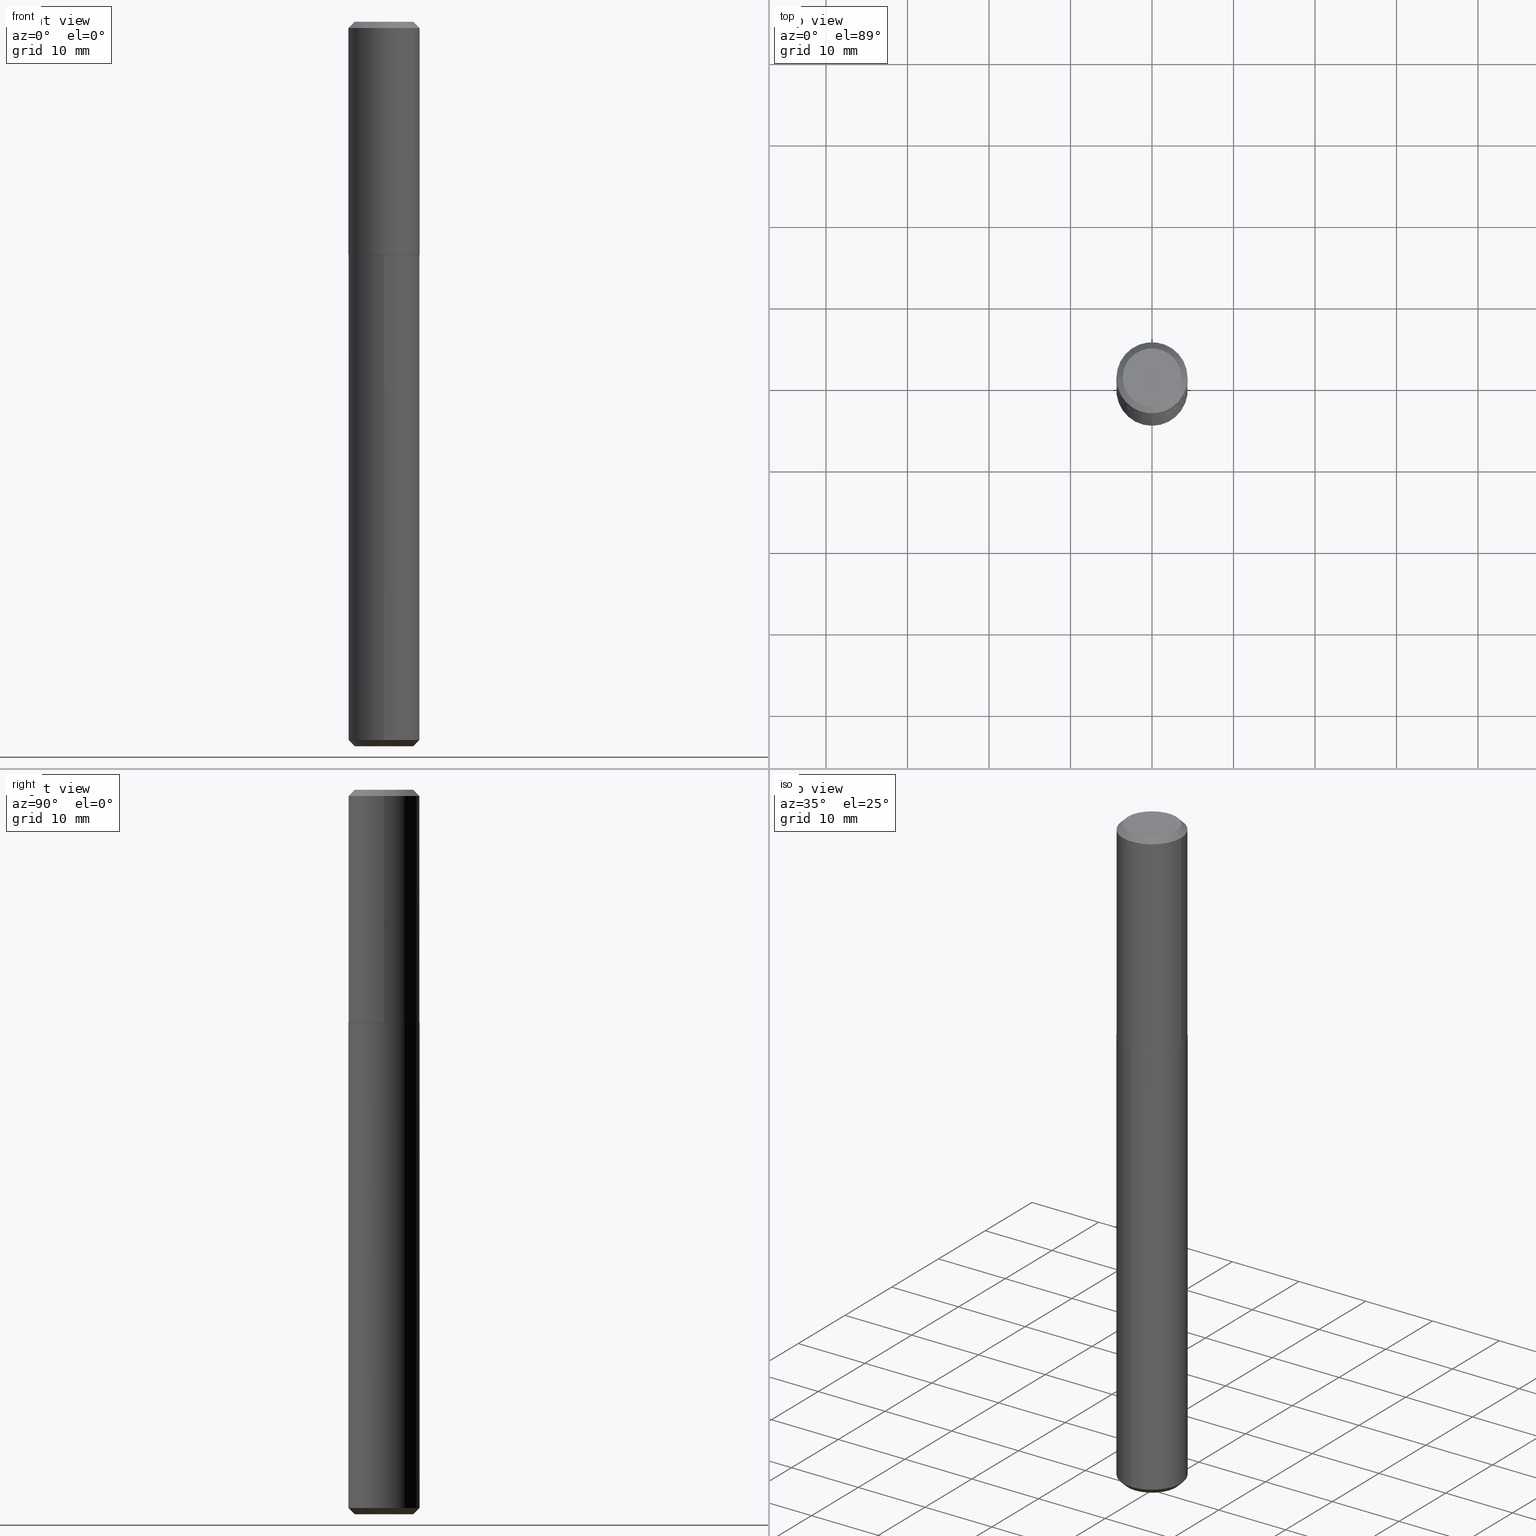
[diagram: canonical four-view strip — front | top / right | iso, engineering-drawing reading convention]
A machine part, canonical four-view strip (front | top / right | iso — engineering-drawing reading convention). The complete STEP part file that produces these views, byte-faithful:
ISO-10303-21;
HEADER;
FILE_DESCRIPTION (( 'STEP AP203' ),
    '1' );
FILE_NAME ('70022.STEP',
    '2024-04-19T13:35:50',
    ( '' ),
    ( '' ),
    'SwSTEP 2.0',
    'SolidWorks 2023',
    '' );
FILE_SCHEMA (( 'CONFIG_CONTROL_DESIGN' ));
ENDSEC;

DATA;
#1 = CARTESIAN_POINT ( 'NONE',  ( 0.1719000000000001083, -5.126542049823386173E-15, -1.124499999999999833 ) ) ;
#2 = VERTEX_POINT ( 'NONE', #239 ) ;
#3 = PRODUCT_DEFINITION_SHAPE ( 'NONE', 'NONE',  #409 ) ;
#4 = CARTESIAN_POINT ( 'NONE',  ( -1.200371284294241631E-15, -0.1719000000000039108, -1.124999999999999334 ) ) ;
#5 = ORIENTED_EDGE ( 'NONE', *, *, #25, .T. ) ;
#6 = LINE ( 'NONE', #259, #331 ) ;
#7 = ORIENTED_EDGE ( 'NONE', *, *, #187, .T. ) ;
#8 = CARTESIAN_POINT ( 'NONE',  ( 2.749929672555185870E-29, -3.926170765529116932E-15, -1.124499999999999833 ) ) ;
#9 = CARTESIAN_POINT ( 'NONE',  ( 7.336406418555460097E-31, -1.047444401652950829E-16, -0.03000000000000020359 ) ) ;
#10 = DIRECTION ( 'NONE',  ( -2.445601401447863841E-29, 3.491291454880066432E-15, 1.000000000000000000 ) ) ;
#11 = ORIENTED_EDGE ( 'NONE', *, *, #184, .F. ) ;
#12 = DIRECTION ( 'NONE',  ( -2.445468806185136597E-29, 3.491481338843145583E-15, 1.000000000000000000 ) ) ;
#13 = EDGE_LOOP ( 'NONE', ( #210, #201 ) ) ;
#14 = EDGE_CURVE ( 'NONE', #111, #266, #323, .T. ) ;
#15 = DIRECTION ( 'NONE',  ( -2.445601401447863841E-29, 3.491291454880066432E-15, 1.000000000000000000 ) ) ;
#16 = CIRCLE ( 'NONE', #93, 0.1719000000000001083 ) ;
#17 = APPROVAL_STATUS ( 'not_yet_approved' ) ;
#18 = DIRECTION ( 'NONE',  ( -6.982962677686266711E-15, -1.000000000000000000, 3.178415350394722068E-15 ) ) ;
#19 = AXIS2_PLACEMENT_3D ( 'NONE', #83, #15, #273 ) ;
#20 = PERSON_AND_ORGANIZATION_ROLE ( 'creator' ) ;
#21 = ORGANIZATION ( 'UNSPECIFIED', 'UNSPECIFIED', '' ) ;
#22 = APPROVAL_DATE_TIME ( #314, #325 ) ;
#23 = DIRECTION ( 'NONE',  ( 1.000000000000000000, -6.982962677686265922E-15, 4.876176775795935793E-29 ) ) ;
#24 = APPROVAL_STATUS ( 'not_yet_approved' ) ;
#25 = EDGE_CURVE ( 'NONE', #101, #168, #303, .T. ) ;
#26 = LINE ( 'NONE', #398, #181 ) ;
#27 = CALENDAR_DATE ( 2024, 19, 4 ) ;
#28 = DIRECTION ( 'NONE',  ( -2.445468806185136597E-29, 3.491481338843145583E-15, 1.000000000000000000 ) ) ;
#29 = EDGE_CURVE ( 'NONE', #266, #111, #126, .T. ) ;
#30 = CARTESIAN_POINT ( 'NONE',  ( 2.751152406958278111E-29, -3.927916506198538435E-15, -1.124999999999999778 ) ) ;
#31 = ORIENTED_EDGE ( 'NONE', *, *, #363, .T. ) ;
#32 = AXIS2_PLACEMENT_3D ( 'NONE', #161, #60, #351 ) ;
#33 = CARTESIAN_POINT ( 'NONE',  ( -0.1718999999999999695, -7.940346400755929507E-16, -0.03000000000000020359 ) ) ;
#34 = ORIENTED_EDGE ( 'NONE', *, *, #308, .F. ) ;
#35 = APPLICATION_PROTOCOL_DEFINITION ( 'international standard', 'config_control_design', 1994, #316 ) ;
#36 = DIRECTION ( 'NONE',  ( 0.7071067811865451302, -7.319954787623248157E-15, -0.7071067811865499042 ) ) ;
#37 = ORIENTED_EDGE ( 'NONE', *, *, #305, .T. ) ;
#38 = EDGE_CURVE ( 'NONE', #263, #145, #407, .T. ) ;
#39 = CARTESIAN_POINT ( 'NONE',  ( -0.1418999999999999706, 1.043254624046327412E-15, 9.613477373235591819E-19 ) ) ;
#40 = CONICAL_SURFACE ( 'NONE', #366, 0.1718999999999999695, 0.7853981633974449483 ) ;
#41 = ORIENTED_EDGE ( 'NONE', *, *, #29, .T. ) ;
#42 = DIRECTION ( 'NONE',  ( 1.000000000000000000, -6.982962677686265922E-15, 4.876176775795935793E-29 ) ) ;
#43 = DIRECTION ( 'NONE',  ( -2.445468806185136597E-29, 3.491481338843145583E-15, 1.000000000000000000 ) ) ;
#44 = ORIENTED_EDGE ( 'NONE', *, *, #269, .T. ) ;
#45 = CARTESIAN_POINT ( 'NONE',  ( -0.1714000000000001078, -2.707397029931614750E-15, -1.124999999999999778 ) ) ;
#46 = EDGE_LOOP ( 'NONE', ( #104, #41, #37, #393 ) ) ;
#47 = DIRECTION ( 'NONE',  ( -2.445601401447863841E-29, 3.491291454880066432E-15, 1.000000000000000000 ) ) ;
#48 = AXIS2_PLACEMENT_3D ( 'NONE', #66, #12, #42 ) ;
#49 = DIRECTION ( 'NONE',  ( -0.7071067811865451302, 2.468850131082231817E-15, -0.7071067811865499042 ) ) ;
#50 = AXIS2_PLACEMENT_3D ( 'NONE', #246, #415, #23 ) ;
#51 = AXIS2_PLACEMENT_3D ( 'NONE', #73, #326, #335 ) ;
#52 = COORDINATED_UNIVERSAL_TIME_OFFSET ( 5, 0, .BEHIND. ) ;
#53 = DATE_AND_TIME ( #247, #306 ) ;
#54 = EDGE_CURVE ( 'NONE', #145, #168, #416, .T. ) ;
#55 = PRODUCT_DEFINITION_FORMATION_WITH_SPECIFIED_SOURCE ( 'ANY', '', #392, .NOT_KNOWN. ) ;
#56 = DATE_TIME_ROLE ( 'creation_date' ) ;
#57 = DIRECTION ( 'NONE',  ( 6.982962677686265922E-15, 1.000000000000000000, -3.491291454880066432E-15 ) ) ;
#58 = DIRECTION ( 'NONE',  ( -2.445468806185136597E-29, 3.491481338843145583E-15, 1.000000000000000000 ) ) ;
#59 = APPLICATION_PROTOCOL_DEFINITION ( 'international standard', 'config_control_design', 1994, #121 ) ;
#60 = DIRECTION ( 'NONE',  ( -2.445601401447863841E-29, 3.491291454880066432E-15, 1.000000000000000000 ) ) ;
#61 = VERTEX_POINT ( 'NONE', #81 ) ;
#62 = CC_DESIGN_APPROVAL ( #384, ( #55 ) ) ;
#63 = FACE_OUTER_BOUND ( 'NONE', #46, .T. ) ;
#64 = ORIENTED_EDGE ( 'NONE', *, *, #339, .T. ) ;
#65 = PLANE ( 'NONE',  #51 ) ;
#66 = CARTESIAN_POINT ( 'NONE',  ( 0.000000000000000000, 0.000000000000000000, 0.000000000000000000 ) ) ;
#67 = PERSON ( 'UNSPECIFIED', 'UNSPECIFIED', 'UNSPECIFIED', ('UNSPECIFIED'), ('UNSPECIFIED'), ('UNSPECIFIED') ) ;
#68 = EDGE_LOOP ( 'NONE', ( #7, #270, #336, #172 ) ) ;
#69 = PRODUCT_RELATED_PRODUCT_CATEGORY ( 'detail', '', ( #392 ) ) ;
#70 = DIRECTION ( 'NONE',  ( 0.7071067811865232589, -2.468850131082003836E-15, 0.7071067811865715536 ) ) ;
#71 = DIRECTION ( 'NONE',  ( -2.445468806185136597E-29, 3.491481338843145583E-15, 1.000000000000000000 ) ) ;
#72 = EDGE_LOOP ( 'NONE', ( #297, #352, #232, #11 ) ) ;
#73 = CARTESIAN_POINT ( 'NONE',  ( -1.175472951769410011E-47, 1.678263842514561342E-33, 4.806738686653359169E-19 ) ) ;
#74 = CARTESIAN_POINT ( 'NONE',  ( 0.1714000000000001078, -5.124796309153964669E-15, -1.124999999999999778 ) ) ;
#75 = AXIS2_PLACEMENT_3D ( 'NONE', #400, #233, #394 ) ;
#76 = ORIENTED_EDGE ( 'NONE', *, *, #184, .T. ) ;
#77 = DIRECTION ( 'NONE',  ( -6.982962677686265922E-15, -1.000000000000000000, 3.850384769082824549E-15 ) ) ;
#78 = VECTOR ( 'NONE', #190, 39.37007874015748143 ) ;
#79 = EDGE_LOOP ( 'NONE', ( #399, #223, #128, #177 ) ) ;
#80 =( CONVERSION_BASED_UNIT ( 'INCH', #295 ) LENGTH_UNIT ( ) NAMED_UNIT ( #368 ) );
#81 = CARTESIAN_POINT ( 'NONE',  ( 1.221422962771697200E-15, 0.1718999999999960560, -1.125000000000000444 ) ) ;
#82 = DIRECTION ( 'NONE',  ( -6.982962677686266711E-15, -1.000000000000000000, 3.178415350394722068E-15 ) ) ;
#83 = CARTESIAN_POINT ( 'NONE',  ( 8.486087693353520127E-29, -1.211499496789229457E-14, -3.469999999999999751 ) ) ;
#84 = CC_DESIGN_PERSON_AND_ORGANIZATION_ASSIGNMENT ( #414, #87, ( #55 ) ) ;
#85 = APPROVAL_DATE_TIME ( #376, #300 ) ;
#86 = CIRCLE ( 'NONE', #215, 0.1718999999999999695 ) ;
#87 = PERSON_AND_ORGANIZATION_ROLE ( 'design_supplier' ) ;
#88 = CIRCLE ( 'NONE', #32, 0.1718999999999999695 ) ;
#89 = CC_DESIGN_PERSON_AND_ORGANIZATION_ASSIGNMENT ( #182, #158, ( #409 ) ) ;
#90 = CLOSED_SHELL ( 'NONE', ( #321, #304, #276, #211, #406, #238, #342, #375 ) ) ;
#91 = ADVANCED_BREP_SHAPE_REPRESENTATION ( '70022', ( #209, #214, #244 ), #234 ) ;
#92 = PLANE ( 'NONE',  #318 ) ;
#93 = AXIS2_PLACEMENT_3D ( 'NONE', #137, #262, #197 ) ;
#94 = PERSON_AND_ORGANIZATION ( #67, #21 ) ;
#95 = CARTESIAN_POINT ( 'NONE',  ( 1.221422962771696805E-15, 0.1718999999999878681, -3.470000000000000195 ) ) ;
#96 = CYLINDRICAL_SURFACE ( 'NONE', #195, 0.1718999999999999695 ) ;
#97 = ADVANCED_FACE ( 'NONE', ( #138 ), #151, .T. ) ;
#98 = DIRECTION ( 'NONE',  ( 1.000000000000000000, -6.982962677686265922E-15, 0.000000000000000000 ) ) ;
#99 = DIRECTION ( 'NONE',  ( 1.000000000000000000, -6.982962677686265922E-15, 0.000000000000000000 ) ) ;
#100 = EDGE_CURVE ( 'NONE', #131, #111, #315, .T. ) ;
#101 = VERTEX_POINT ( 'NONE', #1 ) ;
#102 = FACE_OUTER_BOUND ( 'NONE', #72, .T. ) ;
#103 = DIRECTION ( 'NONE',  ( -2.445468806185136597E-29, 3.491481338843145583E-15, 1.000000000000000000 ) ) ;
#104 = ORIENTED_EDGE ( 'NONE', *, *, #230, .F. ) ;
#105 = ADVANCED_FACE ( 'NONE', ( #63 ), #96, .T. ) ;
#106 = CYLINDRICAL_SURFACE ( 'NONE', #268, 0.1719000000000000528 ) ;
#107 = DIRECTION ( 'NONE',  ( -2.445601401447864121E-29, 3.491291454880066432E-15, 1.000000000000000000 ) ) ;
#108 = VERTEX_POINT ( 'NONE', #357 ) ;
#109 = CARTESIAN_POINT ( 'NONE',  ( -0.1719000000000000528, 1.221422962771612594E-15, -8.455649420148185982E-30 ) ) ;
#110 = CIRCLE ( 'NONE', #343, 0.1418999999999999706 ) ;
#111 = VERTEX_POINT ( 'NONE', #125 ) ;
#112 = CARTESIAN_POINT ( 'NONE',  ( -0.1718999999999999695, 1.095626844128974097E-15, -0.03000000000000020359 ) ) ;
#113 = LOCAL_TIME ( 9, 35, 50.00000000000000000, #243 ) ;
#114 = EDGE_CURVE ( 'NONE', #401, #261, #250, .T. ) ;
#115 = EDGE_CURVE ( 'NONE', #148, #266, #312, .T. ) ;
#116 = APPROVAL_PERSON_ORGANIZATION ( #94, #300, #118 ) ;
#117 = CONICAL_SURFACE ( 'NONE', #349, 0.1718999999999999695, 0.7853981633974491672 ) ;
#118 = APPROVAL_ROLE ( '' ) ;
#119 = DIRECTION ( 'NONE',  ( -2.445601401447863841E-29, 3.491291454880066432E-15, 1.000000000000000000 ) ) ;
#120 = CARTESIAN_POINT ( 'NONE',  ( 1.114841552407682077E-15, 0.1418999999999877581, -3.500000000000000444 ) ) ;
#121 = APPLICATION_CONTEXT ( 'configuration controlled 3d designs of mechanical parts and assemblies' ) ;
#122 = UNCERTAINTY_MEASURE_WITH_UNIT (LENGTH_MEASURE( 1.000000000000000082E-05 ), #80, 'distance_accuracy_value', 'NONE');
#123 = VECTOR ( 'NONE', #140, 39.37007874015748143 ) ;
#124 = DIRECTION ( 'NONE',  ( 0.000000000000000000, 0.000000000000000000, 1.000000000000000000 ) ) ;
#125 = CARTESIAN_POINT ( 'NONE',  ( -1.200371284294184636E-15, -0.1719000000000121819, -3.469999999999999307 ) ) ;
#126 = CIRCLE ( 'NONE', #19, 0.1718999999999999695 ) ;
#127 = DIRECTION ( 'NONE',  ( -6.982962677686266711E-15, -1.000000000000000000, 3.178415350394722068E-15 ) ) ;
#128 = ORIENTED_EDGE ( 'NONE', *, *, #38, .T. ) ;
#129 = EDGE_CURVE ( 'NONE', #131, #148, #110, .T. ) ;
#130 = FACE_OUTER_BOUND ( 'NONE', #338, .T. ) ;
#131 = VERTEX_POINT ( 'NONE', #248 ) ;
#132 = DIRECTION ( 'NONE',  ( -2.445468806185136597E-29, 3.491481338843145583E-15, 1.000000000000000000 ) ) ;
#133 = LOCAL_TIME ( 9, 35, 50.00000000000000000, #281 ) ;
#134 = CYLINDRICAL_SURFACE ( 'NONE', #48, 0.1719000000000000528 ) ;
#135 = ORIENTED_EDGE ( 'NONE', *, *, #29, .F. ) ;
#136 = DIRECTION ( 'NONE',  ( -2.445468806185136597E-29, 3.491481338843145583E-15, 1.000000000000000000 ) ) ;
#137 = CARTESIAN_POINT ( 'NONE',  ( 2.749929672555185870E-29, -3.926170765529116932E-15, -1.124499999999999833 ) ) ;
#138 = FACE_OUTER_BOUND ( 'NONE', #205, .T. ) ;
#139 = CC_DESIGN_PERSON_AND_ORGANIZATION_ASSIGNMENT ( #313, #220, ( #392 ) ) ;
#140 = DIRECTION ( 'NONE',  ( -2.445468806185136877E-29, 3.491481338843145188E-15, 1.000000000000000000 ) ) ;
#141 = FACE_OUTER_BOUND ( 'NONE', #358, .T. ) ;
#142 = ORIENTED_EDGE ( 'NONE', *, *, #305, .F. ) ;
#143 = DIRECTION ( 'NONE',  ( -2.445601401447863841E-29, 3.491291454880066432E-15, 1.000000000000000000 ) ) ;
#144 = CONICAL_SURFACE ( 'NONE', #75, 0.1718999999999999695, 0.7853981633974449483 ) ;
#145 = VERTEX_POINT ( 'NONE', #33 ) ;
#146 = VECTOR ( 'NONE', #49, 39.37007874015748143 ) ;
#147 = CLOSED_SHELL ( 'NONE', ( #260, #163, #97, #105, #229, #413 ) ) ;
#148 = VERTEX_POINT ( 'NONE', #120 ) ;
#149 = CC_DESIGN_DATE_AND_TIME_ASSIGNMENT ( #154, #56, ( #409 ) ) ;
#150 = LOCAL_TIME ( 9, 35, 50.00000000000000000, #183 ) ;
#151 = CONICAL_SURFACE ( 'NONE', #271, 0.1718999999999999695, 0.7853981633974491672 ) ;
#152 = APPROVAL_ROLE ( '' ) ;
#153 = AXIS2_PLACEMENT_3D ( 'NONE', #397, #132, #367 ) ;
#154 = DATE_AND_TIME ( #345, #133 ) ;
#155 = PERSON_AND_ORGANIZATION_ROLE ( 'classification_officer' ) ;
#156 = DIRECTION ( 'NONE',  ( 2.445601401447863561E-29, -3.491291454880066432E-15, -1.000000000000000000 ) ) ;
#157 = EDGE_CURVE ( 'NONE', #61, #198, #88, .T. ) ;
#158 = PERSON_AND_ORGANIZATION_ROLE ( 'creator' ) ;
#159 = DIRECTION ( 'NONE',  ( 1.000000000000000000, -6.982962677686265133E-15, 0.000000000000000000 ) ) ;
#160 = AXIS2_PLACEMENT_3D ( 'NONE', #167, #10, #364 ) ;
#161 = CARTESIAN_POINT ( 'NONE',  ( 2.751152406958278111E-29, -3.927916506198538435E-15, -1.124999999999999778 ) ) ;
#162 = ORIENTED_EDGE ( 'NONE', *, *, #115, .T. ) ;
#163 = ADVANCED_FACE ( 'NONE', ( #164 ), #117, .T. ) ;
#164 = FACE_OUTER_BOUND ( 'NONE', #355, .T. ) ;
#165 = ORIENTED_EDGE ( 'NONE', *, *, #320, .F. ) ;
#166 = FACE_OUTER_BOUND ( 'NONE', #334, .T. ) ;
#167 = CARTESIAN_POINT ( 'NONE',  ( 2.751152406958278111E-29, -3.927916506198538435E-15, -1.124999999999999778 ) ) ;
#168 = VERTEX_POINT ( 'NONE', #309 ) ;
#169 =( NAMED_UNIT ( * ) PLANE_ANGLE_UNIT ( ) SI_UNIT ( $, .RADIAN. ) );
#170 = CC_DESIGN_APPROVAL ( #300, ( #294 ) ) ;
#171 = DIRECTION ( 'NONE',  ( 1.000000000000000000, -6.982962677686267499E-15, 4.876178056576096757E-29 ) ) ;
#172 = ORIENTED_EDGE ( 'NONE', *, *, #373, .F. ) ;
#173 = FACE_OUTER_BOUND ( 'NONE', #79, .T. ) ;
#174 = DIRECTION ( 'NONE',  ( -2.445601401447864121E-29, 3.491291454880066432E-15, 1.000000000000000000 ) ) ;
#175 = ORIENTED_EDGE ( 'NONE', *, *, #256, .T. ) ;
#176 = PLANE ( 'NONE',  #378 ) ;
#177 = ORIENTED_EDGE ( 'NONE', *, *, #54, .T. ) ;
#178 = EDGE_LOOP ( 'NONE', ( #34, #76, #5, #257 ) ) ;
#179 = CC_DESIGN_PERSON_AND_ORGANIZATION_ASSIGNMENT ( #344, #20, ( #55 ) ) ;
#180 = CARTESIAN_POINT ( 'NONE',  ( 7.336406418555460097E-31, -1.047444401652950829E-16, -0.03000000000000020359 ) ) ;
#181 = VECTOR ( 'NONE', #174, 39.37007874015748143 ) ;
#182 = PERSON_AND_ORGANIZATION ( #67, #21 ) ;
#183 = COORDINATED_UNIVERSAL_TIME_OFFSET ( 5, 0, .BEHIND. ) ;
#184 = EDGE_CURVE ( 'NONE', #108, #101, #216, .T. ) ;
#185 = DIRECTION ( 'NONE',  ( 5.024295867788066334E-15, 0.7071067811865505703, 0.7071067811865444641 ) ) ;
#186 = LOCAL_TIME ( 9, 35, 50.00000000000000000, #52 ) ;
#187 = EDGE_CURVE ( 'NONE', #261, #401, #189, .T. ) ;
#188 = CALENDAR_DATE ( 2024, 19, 4 ) ;
#189 = CIRCLE ( 'NONE', #249, 0.1714000000000001078 ) ;
#190 = DIRECTION ( 'NONE',  ( -4.937700262164551986E-15, -0.7071067811865456854, 0.7071067811865493491 ) ) ;
#191 = PERSON_AND_ORGANIZATION ( #67, #21 ) ;
#192 = CC_DESIGN_DATE_AND_TIME_ASSIGNMENT ( #53, #279, ( #294 ) ) ;
#193 = EDGE_CURVE ( 'NONE', #401, #108, #289, .T. ) ;
#194 = DESIGN_CONTEXT ( 'detailed design', #121, 'design' ) ;
#195 = AXIS2_PLACEMENT_3D ( 'NONE', #386, #317, #127 ) ;
#196 = ORIENTED_EDGE ( 'NONE', *, *, #308, .T. ) ;
#197 = DIRECTION ( 'NONE',  ( 1.000000000000000000, -6.982962677686265922E-15, 0.000000000000000000 ) ) ;
#198 = VERTEX_POINT ( 'NONE', #4 ) ;
#199 = DIRECTION ( 'NONE',  ( -6.982962677686265922E-15, -1.000000000000000000, 3.491291454880066432E-15 ) ) ;
#200 = CARTESIAN_POINT ( 'NONE',  ( -2.350945903538820021E-47, 3.356527685029122683E-33, 9.613477373306718338E-19 ) ) ;
#201 = ORIENTED_EDGE ( 'NONE', *, *, #157, .T. ) ;
#202 = LINE ( 'NONE', #267, #277 ) ;
#203 = AXIS2_PLACEMENT_3D ( 'NONE', #200, #360, #171 ) ;
#204 = DIRECTION ( 'NONE',  ( 1.000000000000000000, -6.982962677686266711E-15, 0.000000000000000000 ) ) ;
#205 = EDGE_LOOP ( 'NONE', ( #253, #31, #337, #135 ) ) ;
#206 = VECTOR ( 'NONE', #372, 39.37007874015748143 ) ;
#207 = CARTESIAN_POINT ( 'NONE',  ( 2.751152406958278111E-29, -3.927916506198538435E-15, -1.124999999999999778 ) ) ;
#208 = ORIENTED_EDGE ( 'NONE', *, *, #25, .F. ) ;
#209 = MANIFOLD_SOLID_BREP ( 'Body-Move/Copy2[1]', #147 ) ;
#210 = ORIENTED_EDGE ( 'NONE', *, *, #320, .T. ) ;
#211 = ADVANCED_FACE ( 'NONE', ( #130 ), #390, .F. ) ;
#212 = AXIS2_PLACEMENT_3D ( 'NONE', #8, #136, #98 ) ;
#213 = CARTESIAN_POINT ( 'NONE',  ( 0.1719000000000000528, -1.200371284294269438E-15, 8.382147877593215881E-30 ) ) ;
#214 = MANIFOLD_SOLID_BREP ( 'Body-Move/Copy2[2]', #90 ) ;
#215 = AXIS2_PLACEMENT_3D ( 'NONE', #207, #264, #332 ) ;
#216 = CIRCLE ( 'NONE', #311, 0.1719000000000001083 ) ;
#217 = APPROVAL_STATUS ( 'not_yet_approved' ) ;
#218 = CC_DESIGN_PERSON_AND_ORGANIZATION_ASSIGNMENT ( #307, #155, ( #294 ) ) ;
#219 = DIRECTION ( 'NONE',  ( -2.445468806185136597E-29, 3.491481338843145583E-15, 1.000000000000000000 ) ) ;
#220 = PERSON_AND_ORGANIZATION_ROLE ( 'design_owner' ) ;
#221 = EDGE_LOOP ( 'NONE', ( #324, #365 ) ) ;
#222 = CARTESIAN_POINT ( 'NONE',  ( -1.200371284294184044E-15, -0.1719000000000120987, -3.469999999999999307 ) ) ;
#223 = ORIENTED_EDGE ( 'NONE', *, *, #275, .F. ) ;
#224 = CONICAL_SURFACE ( 'NONE', #347, 0.1719000000000001083, 0.7853981633974141952 ) ;
#225 = ORIENTED_EDGE ( 'NONE', *, *, #275, .T. ) ;
#226 = CARTESIAN_POINT ( 'NONE',  ( 8.559140821647976968E-29, -1.222018468595100934E-14, -3.500000000000000000 ) ) ;
#227 = DIRECTION ( 'NONE',  ( 1.000000000000000000, -6.982962677686265922E-15, 4.876176775795935793E-29 ) ) ;
#228 = ORIENTED_EDGE ( 'NONE', *, *, #38, .F. ) ;
#229 = ADVANCED_FACE ( 'NONE', ( #383 ), #92, .F. ) ;
#230 = EDGE_CURVE ( 'NONE', #266, #61, #26, .T. ) ;
#231 = FACE_OUTER_BOUND ( 'NONE', #178, .T. ) ;
#232 = ORIENTED_EDGE ( 'NONE', *, *, #373, .T. ) ;
#233 = DIRECTION ( 'NONE',  ( 2.445468806185136597E-29, -3.491481338843145583E-15, -1.000000000000000000 ) ) ;
#234 =( GEOMETRIC_REPRESENTATION_CONTEXT ( 3 ) GLOBAL_UNCERTAINTY_ASSIGNED_CONTEXT ( ( #122 ) ) GLOBAL_UNIT_ASSIGNED_CONTEXT ( ( #80, #169, #288 ) ) REPRESENTATION_CONTEXT ( 'NONE', 'WORKASPACE' ) );
#235 = DIRECTION ( 'NONE',  ( -2.445468806185136597E-29, 3.491481338843145583E-15, 1.000000000000000000 ) ) ;
#236 = AXIS2_PLACEMENT_3D ( 'NONE', #30, #219, #412 ) ;
#237 = AXIS2_PLACEMENT_3D ( 'NONE', #180, #235, #377 ) ;
#238 = ADVANCED_FACE ( 'NONE', ( #231 ), #106, .T. ) ;
#239 = CARTESIAN_POINT ( 'NONE',  ( 0.1418999999999999706, -1.128784355933000759E-15, 9.613477373380831974E-19 ) ) ;
#240 = ORIENTED_EDGE ( 'NONE', *, *, #280, .T. ) ;
#241 = APPROVAL_PERSON_ORGANIZATION ( #191, #325, #152 ) ;
#242 = COORDINATED_UNIVERSAL_TIME_OFFSET ( 5, 0, .BEHIND. ) ;
#243 = COORDINATED_UNIVERSAL_TIME_OFFSET ( 5, 0, .BEHIND. ) ;
#244 = AXIS2_PLACEMENT_3D ( 'NONE', #381, #124, #284 ) ;
#245 = APPROVAL_ROLE ( '' ) ;
#246 = CARTESIAN_POINT ( 'NONE',  ( 2.751152406958278111E-29, -3.927916506198538435E-15, -1.124999999999999778 ) ) ;
#247 = CALENDAR_DATE ( 2024, 19, 4 ) ;
#248 = CARTESIAN_POINT ( 'NONE',  ( -9.908824039635953330E-16, -0.1419000000000122108, -3.499999999999999112 ) ) ;
#249 = AXIS2_PLACEMENT_3D ( 'NONE', #387, #28, #159 ) ;
#250 = CIRCLE ( 'NONE', #236, 0.1714000000000001078 ) ;
#251 = CARTESIAN_POINT ( 'NONE',  ( 8.559455735396955084E-29, -1.221973371153869488E-14, -3.500000000000000000 ) ) ;
#252 = DIRECTION ( 'NONE',  ( -6.982962677686265922E-15, -1.000000000000000000, 3.850384769082824549E-15 ) ) ;
#253 = ORIENTED_EDGE ( 'NONE', *, *, #115, .F. ) ;
#254 = CARTESIAN_POINT ( 'NONE',  ( 8.559455735396955084E-29, -1.221973371153869488E-14, -3.500000000000000000 ) ) ;
#255 = DIRECTION ( 'NONE',  ( -6.982962677686266711E-15, -1.000000000000000000, 3.178415350394722068E-15 ) ) ;
#256 = EDGE_CURVE ( 'NONE', #2, #168, #6, .T. ) ;
#257 = ORIENTED_EDGE ( 'NONE', *, *, #54, .F. ) ;
#258 = DIRECTION ( 'NONE',  ( 2.445468806185136597E-29, -3.491481338843145583E-15, -1.000000000000000000 ) ) ;
#259 = CARTESIAN_POINT ( 'NONE',  ( 0.1718999999999999695, -1.284064045982221230E-15, -0.03000000000000020359 ) ) ;
#260 = ADVANCED_FACE ( 'NONE', ( #329 ), #299, .T. ) ;
#261 = VERTEX_POINT ( 'NONE', #74 ) ;
#262 = DIRECTION ( 'NONE',  ( -2.445468806185136597E-29, 3.491481338843145583E-15, 1.000000000000000000 ) ) ;
#263 = VERTEX_POINT ( 'NONE', #39 ) ;
#264 = DIRECTION ( 'NONE',  ( -2.445601401447863841E-29, 3.491291454880066432E-15, 1.000000000000000000 ) ) ;
#265 = CARTESIAN_POINT ( 'NONE',  ( 8.486087693353520127E-29, -1.211499496789229457E-14, -3.469999999999999751 ) ) ;
#266 = VERTEX_POINT ( 'NONE', #327 ) ;
#267 = CARTESIAN_POINT ( 'NONE',  ( 0.1719000000000001083, -5.126542049823386173E-15, -1.124499999999999833 ) ) ;
#268 = AXIS2_PLACEMENT_3D ( 'NONE', #395, #103, #227 ) ;
#269 = EDGE_CURVE ( 'NONE', #168, #145, #391, .T. ) ;
#270 = ORIENTED_EDGE ( 'NONE', *, *, #193, .T. ) ;
#271 = AXIS2_PLACEMENT_3D ( 'NONE', #265, #272, #18 ) ;
#272 = DIRECTION ( 'NONE',  ( -2.445601401447863841E-29, 3.491291454880066432E-15, 1.000000000000000000 ) ) ;
#273 = DIRECTION ( 'NONE',  ( -6.982962677686266711E-15, -1.000000000000000000, 3.178415350394722068E-15 ) ) ;
#274 = CIRCLE ( 'NONE', #302, 0.1418999999999999706 ) ;
#275 = EDGE_CURVE ( 'NONE', #263, #2, #410, .T. ) ;
#276 = ADVANCED_FACE ( 'NONE', ( #333 ), #224, .T. ) ;
#277 = VECTOR ( 'NONE', #70, 39.37007874015748854 ) ;
#278 = CARTESIAN_POINT ( 'NONE',  ( -0.1719000000000001083, -2.704747802757503943E-15, -1.124499999999999833 ) ) ;
#279 = DATE_TIME_ROLE ( 'classification_date' ) ;
#280 = EDGE_CURVE ( 'NONE', #101, #108, #16, .T. ) ;
#281 = COORDINATED_UNIVERSAL_TIME_OFFSET ( 5, 0, .BEHIND. ) ;
#282 = DIRECTION ( 'NONE',  ( -0.7071067811865232589, 7.493145998870265808E-15, 0.7071067811865715536 ) ) ;
#283 = CONICAL_SURFACE ( 'NONE', #212, 0.1719000000000001083, 0.7853981633974141952 ) ;
#284 = DIRECTION ( 'NONE',  ( 1.000000000000000000, 0.000000000000000000, 0.000000000000000000 ) ) ;
#285 = VECTOR ( 'NONE', #185, 39.37007874015748143 ) ;
#286 = CARTESIAN_POINT ( 'NONE',  ( 8.486087693353520127E-29, -1.211499496789229457E-14, -3.469999999999999751 ) ) ;
#287 = EDGE_LOOP ( 'NONE', ( #369, #293, #165, #142 ) ) ;
#288 =( NAMED_UNIT ( * ) SI_UNIT ( $, .STERADIAN. ) SOLID_ANGLE_UNIT ( ) );
#289 = LINE ( 'NONE', #278, #380 ) ;
#290 = ORIENTED_EDGE ( 'NONE', *, *, #129, .T. ) ;
#291 = LINE ( 'NONE', #109, #123 ) ;
#292 = CARTESIAN_POINT ( 'NONE',  ( 2.749929672555185870E-29, -3.926170765529116932E-15, -1.124499999999999833 ) ) ;
#293 = ORIENTED_EDGE ( 'NONE', *, *, #230, .T. ) ;
#294 = SECURITY_CLASSIFICATION ( '', '', #385 ) ;
#295 = LENGTH_MEASURE_WITH_UNIT ( LENGTH_MEASURE( 0.02539999999999999897 ), #370 );
#296 = DIRECTION ( 'NONE',  ( 1.000000000000000000, -6.982962677686265922E-15, 0.000000000000000000 ) ) ;
#297 = ORIENTED_EDGE ( 'NONE', *, *, #193, .F. ) ;
#298 = DIRECTION ( 'NONE',  ( -1.000000000000000000, 6.982962677686266711E-15, 0.000000000000000000 ) ) ;
#299 = CYLINDRICAL_SURFACE ( 'NONE', #160, 0.1718999999999999695 ) ;
#300 = APPROVAL ( #217, 'UNSPECIFIED' ) ;
#301 = ORIENTED_EDGE ( 'NONE', *, *, #187, .F. ) ;
#302 = AXIS2_PLACEMENT_3D ( 'NONE', #254, #143, #77 ) ;
#303 = LINE ( 'NONE', #213, #206 ) ;
#304 = ADVANCED_FACE ( 'NONE', ( #141 ), #134, .T. ) ;
#305 = EDGE_CURVE ( 'NONE', #111, #198, #328, .T. ) ;
#306 = LOCAL_TIME ( 9, 35, 50.00000000000000000, #242 ) ;
#307 = PERSON_AND_ORGANIZATION ( #67, #21 ) ;
#308 = EDGE_CURVE ( 'NONE', #108, #145, #291, .T. ) ;
#309 = CARTESIAN_POINT ( 'NONE',  ( 0.1718999999999999695, -1.305115724459563991E-15, -0.03000000000000020359 ) ) ;
#310 = CC_DESIGN_APPROVAL ( #325, ( #409 ) ) ;
#311 = AXIS2_PLACEMENT_3D ( 'NONE', #350, #58, #99 ) ;
#312 = LINE ( 'NONE', #95, #285 ) ;
#313 = PERSON_AND_ORGANIZATION ( #67, #21 ) ;
#314 = DATE_AND_TIME ( #188, #113 ) ;
#315 = LINE ( 'NONE', #222, #78 ) ;
#316 = APPLICATION_CONTEXT ( 'configuration controlled 3d designs of mechanical parts and assemblies' ) ;
#317 = DIRECTION ( 'NONE',  ( -2.445601401447863841E-29, 3.491291454880066432E-15, 1.000000000000000000 ) ) ;
#318 = AXIS2_PLACEMENT_3D ( 'NONE', #346, #156, #57 ) ;
#319 = ORIENTED_EDGE ( 'NONE', *, *, #114, .F. ) ;
#320 = EDGE_CURVE ( 'NONE', #198, #61, #86, .T. ) ;
#321 = ADVANCED_FACE ( 'NONE', ( #166 ), #144, .T. ) ;
#322 = MECHANICAL_CONTEXT ( 'NONE', #316, 'mechanical' ) ;
#323 = CIRCLE ( 'NONE', #404, 0.1718999999999999695 ) ;
#324 = ORIENTED_EDGE ( 'NONE', *, *, #129, .F. ) ;
#325 = APPROVAL ( #17, 'UNSPECIFIED' ) ;
#326 = DIRECTION ( 'NONE',  ( 2.438088387897960049E-29, -3.491481338843145188E-15, -1.000000000000000000 ) ) ;
#327 = CARTESIAN_POINT ( 'NONE',  ( 1.221422962771696214E-15, 0.1718999999999877848, -3.470000000000000195 ) ) ;
#328 = LINE ( 'NONE', #356, #354 ) ;
#329 = FACE_OUTER_BOUND ( 'NONE', #287, .T. ) ;
#330 = ORIENTED_EDGE ( 'NONE', *, *, #339, .F. ) ;
#331 = VECTOR ( 'NONE', #36, 39.37007874015748143 ) ;
#332 = DIRECTION ( 'NONE',  ( -6.982962677686266711E-15, -1.000000000000000000, 3.178415350394722068E-15 ) ) ;
#333 = FACE_OUTER_BOUND ( 'NONE', #68, .T. ) ;
#334 = EDGE_LOOP ( 'NONE', ( #330, #175, #44, #228 ) ) ;
#335 = DIRECTION ( 'NONE',  ( -1.000000000000000000, 6.982962677686265922E-15, -4.876176775795935793E-29 ) ) ;
#336 = ORIENTED_EDGE ( 'NONE', *, *, #280, .F. ) ;
#337 = ORIENTED_EDGE ( 'NONE', *, *, #100, .T. ) ;
#338 = EDGE_LOOP ( 'NONE', ( #301, #319 ) ) ;
#339 = EDGE_CURVE ( 'NONE', #2, #263, #340, .T. ) ;
#340 = CIRCLE ( 'NONE', #153, 0.1418999999999999706 ) ;
#341 = PERSON_AND_ORGANIZATION ( #67, #21 ) ;
#342 = ADVANCED_FACE ( 'NONE', ( #173 ), #40, .T. ) ;
#343 = AXIS2_PLACEMENT_3D ( 'NONE', #251, #353, #252 ) ;
#344 = PERSON_AND_ORGANIZATION ( #67, #21 ) ;
#345 = CALENDAR_DATE ( 2024, 19, 4 ) ;
#346 = CARTESIAN_POINT ( 'NONE',  ( 2.751152406958278111E-29, -3.927916506198538435E-15, -1.124999999999999778 ) ) ;
#347 = AXIS2_PLACEMENT_3D ( 'NONE', #292, #71, #296 ) ;
#348 = SHAPE_DEFINITION_REPRESENTATION ( #3, #91 ) ;
#349 = AXIS2_PLACEMENT_3D ( 'NONE', #286, #119, #255 ) ;
#350 = CARTESIAN_POINT ( 'NONE',  ( 2.749929672555185870E-29, -3.926170765529116932E-15, -1.124499999999999833 ) ) ;
#351 = DIRECTION ( 'NONE',  ( -6.982962677686266711E-15, -1.000000000000000000, 3.178415350394722068E-15 ) ) ;
#352 = ORIENTED_EDGE ( 'NONE', *, *, #114, .T. ) ;
#353 = DIRECTION ( 'NONE',  ( -2.445601401447863841E-29, 3.491291454880066432E-15, 1.000000000000000000 ) ) ;
#354 = VECTOR ( 'NONE', #107, 39.37007874015748143 ) ;
#355 = EDGE_LOOP ( 'NONE', ( #290, #162, #405, #388 ) ) ;
#356 = CARTESIAN_POINT ( 'NONE',  ( -1.200371284294241631E-15, -0.1719000000000039108, -1.124999999999999334 ) ) ;
#357 = CARTESIAN_POINT ( 'NONE',  ( -0.1719000000000001083, -2.704747802757503943E-15, -1.124499999999999833 ) ) ;
#358 = EDGE_LOOP ( 'NONE', ( #240, #196, #396, #208 ) ) ;
#359 = DIRECTION ( 'NONE',  ( -2.445601401447863561E-29, 3.491291454880066432E-15, 1.000000000000000000 ) ) ;
#360 = DIRECTION ( 'NONE',  ( -2.445468806185136597E-29, 3.491481338843145583E-15, 1.000000000000000000 ) ) ;
#361 = EDGE_LOOP ( 'NONE', ( #225, #64 ) ) ;
#362 = CARTESIAN_POINT ( 'NONE',  ( 7.336406418555460097E-31, -1.047444401652950829E-16, -0.03000000000000020359 ) ) ;
#363 = EDGE_CURVE ( 'NONE', #148, #131, #274, .T. ) ;
#364 = DIRECTION ( 'NONE',  ( -6.982962677686266711E-15, -1.000000000000000000, 3.178415350394722068E-15 ) ) ;
#365 = ORIENTED_EDGE ( 'NONE', *, *, #363, .F. ) ;
#366 = AXIS2_PLACEMENT_3D ( 'NONE', #362, #258, #298 ) ;
#367 = DIRECTION ( 'NONE',  ( 1.000000000000000000, -6.982962677686267499E-15, 4.876178056576096757E-29 ) ) ;
#368 = DIMENSIONAL_EXPONENTS ( 1.000000000000000000, 0.000000000000000000, 0.000000000000000000, 0.000000000000000000, 0.000000000000000000, 0.000000000000000000, 0.000000000000000000 ) ;
#369 = ORIENTED_EDGE ( 'NONE', *, *, #14, .T. ) ;
#370 =( LENGTH_UNIT ( ) NAMED_UNIT ( * ) SI_UNIT ( $, .METRE. ) );
#371 = CARTESIAN_POINT ( 'NONE',  ( 8.486087693353520127E-29, -1.211499496789229457E-14, -3.469999999999999751 ) ) ;
#372 = DIRECTION ( 'NONE',  ( -2.445468806185136877E-29, 3.491481338843145188E-15, 1.000000000000000000 ) ) ;
#373 = EDGE_CURVE ( 'NONE', #261, #101, #202, .T. ) ;
#374 = APPROVAL_PERSON_ORGANIZATION ( #341, #384, #245 ) ;
#375 = ADVANCED_FACE ( 'NONE', ( #389 ), #65, .F. ) ;
#376 = DATE_AND_TIME ( #411, #150 ) ;
#377 = DIRECTION ( 'NONE',  ( 1.000000000000000000, -6.982962677686266711E-15, 0.000000000000000000 ) ) ;
#378 = AXIS2_PLACEMENT_3D ( 'NONE', #226, #359, #199 ) ;
#379 = DATE_AND_TIME ( #27, #186 ) ;
#380 = VECTOR ( 'NONE', #282, 39.37007874015748854 ) ;
#381 = CARTESIAN_POINT ( 'NONE',  ( 0.000000000000000000, 0.000000000000000000, 0.000000000000000000 ) ) ;
#382 = APPROVAL_DATE_TIME ( #379, #384 ) ;
#383 = FACE_OUTER_BOUND ( 'NONE', #13, .T. ) ;
#384 = APPROVAL ( #24, 'UNSPECIFIED' ) ;
#385 = SECURITY_CLASSIFICATION_LEVEL ( 'unclassified' ) ;
#386 = CARTESIAN_POINT ( 'NONE',  ( 2.751152406958278111E-29, -3.927916506198538435E-15, -1.124999999999999778 ) ) ;
#387 = CARTESIAN_POINT ( 'NONE',  ( 2.751152406958278111E-29, -3.927916506198538435E-15, -1.124999999999999778 ) ) ;
#388 = ORIENTED_EDGE ( 'NONE', *, *, #100, .F. ) ;
#389 = FACE_OUTER_BOUND ( 'NONE', #361, .T. ) ;
#390 = PLANE ( 'NONE',  #50 ) ;
#391 = CIRCLE ( 'NONE', #402, 0.1718999999999999695 ) ;
#392 = PRODUCT ( '70022', '70022', '', ( #322 ) ) ;
#393 = ORIENTED_EDGE ( 'NONE', *, *, #157, .F. ) ;
#394 = DIRECTION ( 'NONE',  ( -1.000000000000000000, 6.982962677686266711E-15, 0.000000000000000000 ) ) ;
#395 = CARTESIAN_POINT ( 'NONE',  ( 0.000000000000000000, 0.000000000000000000, 0.000000000000000000 ) ) ;
#396 = ORIENTED_EDGE ( 'NONE', *, *, #269, .F. ) ;
#397 = CARTESIAN_POINT ( 'NONE',  ( -2.350945903538820021E-47, 3.356527685029122683E-33, 9.613477373306718338E-19 ) ) ;
#398 = CARTESIAN_POINT ( 'NONE',  ( 1.221422962771639218E-15, 0.1718999999999960560, -1.125000000000000444 ) ) ;
#399 = ORIENTED_EDGE ( 'NONE', *, *, #256, .F. ) ;
#400 = CARTESIAN_POINT ( 'NONE',  ( 7.336406418555460097E-31, -1.047444401652950829E-16, -0.03000000000000020359 ) ) ;
#401 = VERTEX_POINT ( 'NONE', #45 ) ;
#402 = AXIS2_PLACEMENT_3D ( 'NONE', #9, #43, #204 ) ;
#403 = FACE_OUTER_BOUND ( 'NONE', #221, .T. ) ;
#404 = AXIS2_PLACEMENT_3D ( 'NONE', #371, #47, #82 ) ;
#405 = ORIENTED_EDGE ( 'NONE', *, *, #14, .F. ) ;
#406 = ADVANCED_FACE ( 'NONE', ( #102 ), #283, .T. ) ;
#407 = LINE ( 'NONE', #112, #146 ) ;
#408 = CC_DESIGN_SECURITY_CLASSIFICATION ( #294, ( #55 ) ) ;
#409 = PRODUCT_DEFINITION ( 'UNKNOWN', '', #55, #194 ) ;
#410 = CIRCLE ( 'NONE', #203, 0.1418999999999999706 ) ;
#411 = CALENDAR_DATE ( 2024, 19, 4 ) ;
#412 = DIRECTION ( 'NONE',  ( 1.000000000000000000, -6.982962677686265133E-15, 0.000000000000000000 ) ) ;
#413 = ADVANCED_FACE ( 'NONE', ( #403 ), #176, .F. ) ;
#414 = PERSON_AND_ORGANIZATION ( #67, #21 ) ;
#415 = DIRECTION ( 'NONE',  ( -2.438088387897960049E-29, 3.491481338843145188E-15, 1.000000000000000000 ) ) ;
#416 = CIRCLE ( 'NONE', #237, 0.1718999999999999695 ) ;
ENDSEC;
END-ISO-10303-21;
